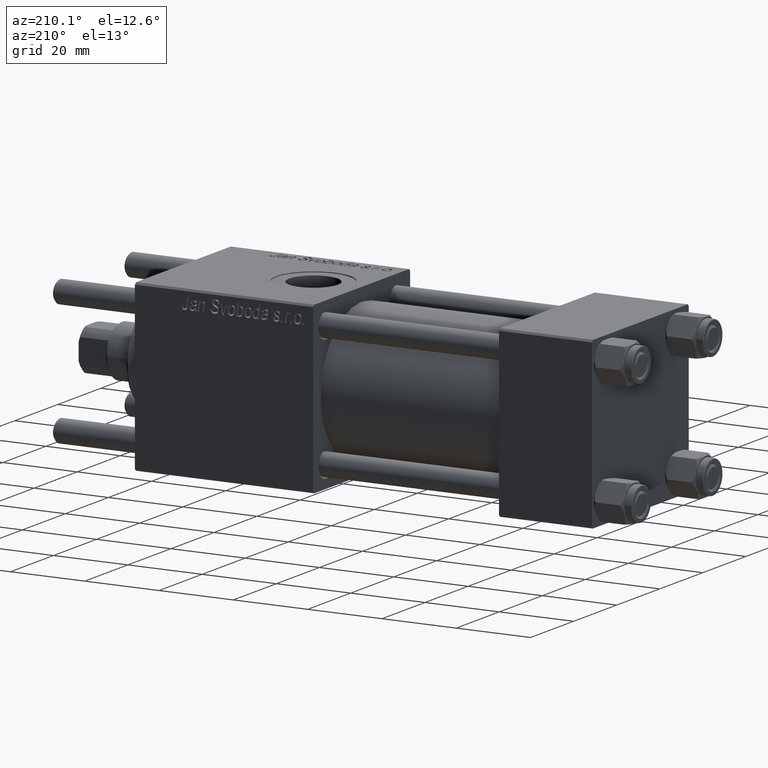
[diagram: clean part render]
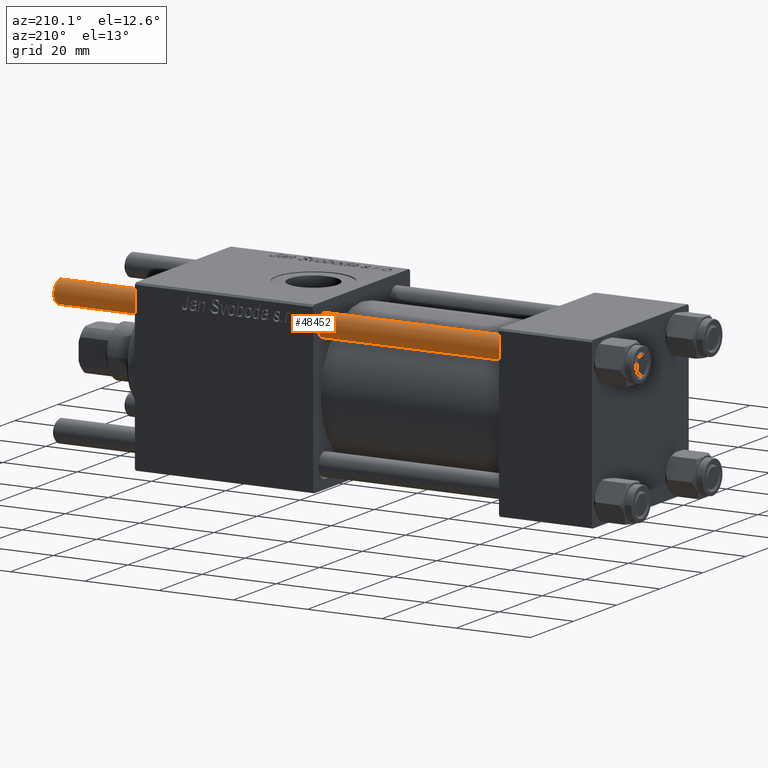
[diagram: same view with one face highlighted and labeled with its STEP entity id]
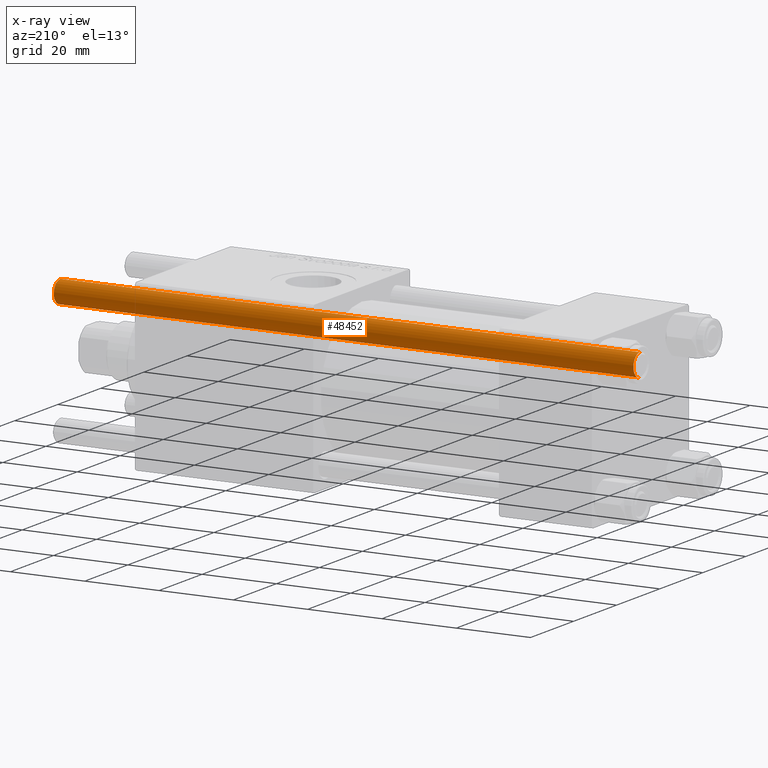
[diagram: x-ray of the same camera — body ghosted, the highlighted face saturated]
A machine part, auxiliary view. The second image highlights one B-rep face of the part: STEP entity #48452.
The next image is the same camera in x-ray: the body ghosted, the highlighted face saturated — about 0% of this face is hidden behind the body in this view.
In plain terms, the highlighted cylindrical surface (edge-blend (fillet) strip) has radius 3 mm, axis along (1, -0, -0).
Its self-contained STEP definition (entity closure, byte-faithful):
#902 = ORIENTED_EDGE ( 'NONE', *, *, #51131, .T. ) ;
#1300 = CARTESIAN_POINT ( 'NONE',  ( 0.000000000000000000, 0.000000000000000000, 0.4999999999999726885 ) ) ;
#1418 = AXIS2_PLACEMENT_3D ( 'NONE', #1300, #10525, #18888 ) ;
#2390 = CARTESIAN_POINT ( 'NONE',  ( -3.000000000000000444, 0.000000000000000000, 0.4999999999999726885 ) ) ;
#4449 = CARTESIAN_POINT ( 'NONE',  ( 0.000000000000000000, 0.000000000000000000, 157.0000000000000000 ) ) ;
#5694 = EDGE_CURVE ( 'NONE', #37505, #15639, #55121, .T. ) ;
#7922 = DIRECTION ( 'NONE',  ( 0.000000000000000000, 0.000000000000000000, -1.000000000000000000 ) ) ;
#10147 = CARTESIAN_POINT ( 'NONE',  ( 3.000000000000000444, 3.673940397442060361E-16, 156.5000000000000284 ) ) ;
#10525 = DIRECTION ( 'NONE',  ( -0.000000000000000000, -0.000000000000000000, 1.000000000000000000 ) ) ;
#12445 = DIRECTION ( 'NONE',  ( -0.000000000000000000, -0.000000000000000000, -1.000000000000000000 ) ) ;
#13667 = CYLINDRICAL_SURFACE ( 'NONE', #41259, 3.000000000000000444 ) ;
#13953 = DIRECTION ( 'NONE',  ( -0.000000000000000000, -0.000000000000000000, -1.000000000000000000 ) ) ;
#15639 = VERTEX_POINT ( 'NONE', #21173 ) ;
#16689 = VERTEX_POINT ( 'NONE', #2390 ) ;
#17046 = LINE ( 'NONE', #29441, #49664 ) ;
#18882 = CARTESIAN_POINT ( 'NONE',  ( 3.000000000000000444, 3.673940397442060361E-16, 157.0000000000000000 ) ) ;
#18888 = DIRECTION ( 'NONE',  ( 1.000000000000000000, 0.000000000000000000, 0.000000000000000000 ) ) ;
#19948 = CIRCLE ( 'NONE', #1418, 3.000000000000000444 ) ;
#21173 = CARTESIAN_POINT ( 'NONE',  ( 3.000000000000000444, 3.673940397442060361E-16, 0.4999999999999726885 ) ) ;
#22021 = DIRECTION ( 'NONE',  ( -1.000000000000000000, 0.000000000000000000, 0.000000000000000000 ) ) ;
#22489 = CARTESIAN_POINT ( 'NONE',  ( -3.000000000000000444, 0.000000000000000000, 156.5000000000000284 ) ) ;
#26093 = ORIENTED_EDGE ( 'NONE', *, *, #53834, .F. ) ;
#29380 = CIRCLE ( 'NONE', #43193, 3.000000000000000444 ) ;
#29441 = CARTESIAN_POINT ( 'NONE',  ( -3.000000000000000444, 0.000000000000000000, 157.0000000000000000 ) ) ;
#30649 = CARTESIAN_POINT ( 'NONE',  ( 0.000000000000000000, 0.000000000000000000, 156.5000000000000284 ) ) ;
#31746 = VERTEX_POINT ( 'NONE', #22489 ) ;
#37505 = VERTEX_POINT ( 'NONE', #10147 ) ;
#38194 = EDGE_CURVE ( 'NONE', #15639, #16689, #19948, .T. ) ;
#41259 = AXIS2_PLACEMENT_3D ( 'NONE', #4449, #13953, #22021 ) ;
#43193 = AXIS2_PLACEMENT_3D ( 'NONE', #30649, #7922, #43911 ) ;
#43660 = VECTOR ( 'NONE', #45642, 1000.000000000000000 ) ;
#43911 = DIRECTION ( 'NONE',  ( 1.000000000000000000, 0.000000000000000000, 0.000000000000000000 ) ) ;
#45642 = DIRECTION ( 'NONE',  ( -0.000000000000000000, -0.000000000000000000, -1.000000000000000000 ) ) ;
#47200 = EDGE_LOOP ( 'NONE', ( #902, #49324, #51668, #26093 ) ) ;
#48452 = ADVANCED_FACE ( 'NONE', ( #48486 ), #13667, .T. ) ;
#48486 = FACE_OUTER_BOUND ( 'NONE', #47200, .T. ) ;
#49324 = ORIENTED_EDGE ( 'NONE', *, *, #5694, .T. ) ;
#49664 = VECTOR ( 'NONE', #12445, 1000.000000000000000 ) ;
#51131 = EDGE_CURVE ( 'NONE', #31746, #37505, #29380, .T. ) ;
#51668 = ORIENTED_EDGE ( 'NONE', *, *, #38194, .T. ) ;
#53834 = EDGE_CURVE ( 'NONE', #31746, #16689, #17046, .T. ) ;
#55121 = LINE ( 'NONE', #18882, #43660 ) ;